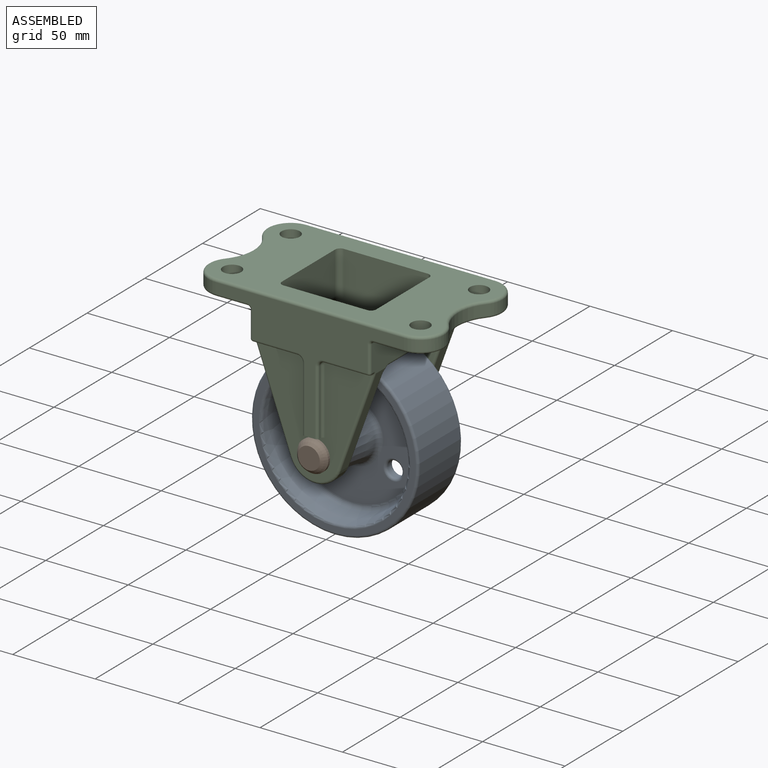
[diagram: assembled view]
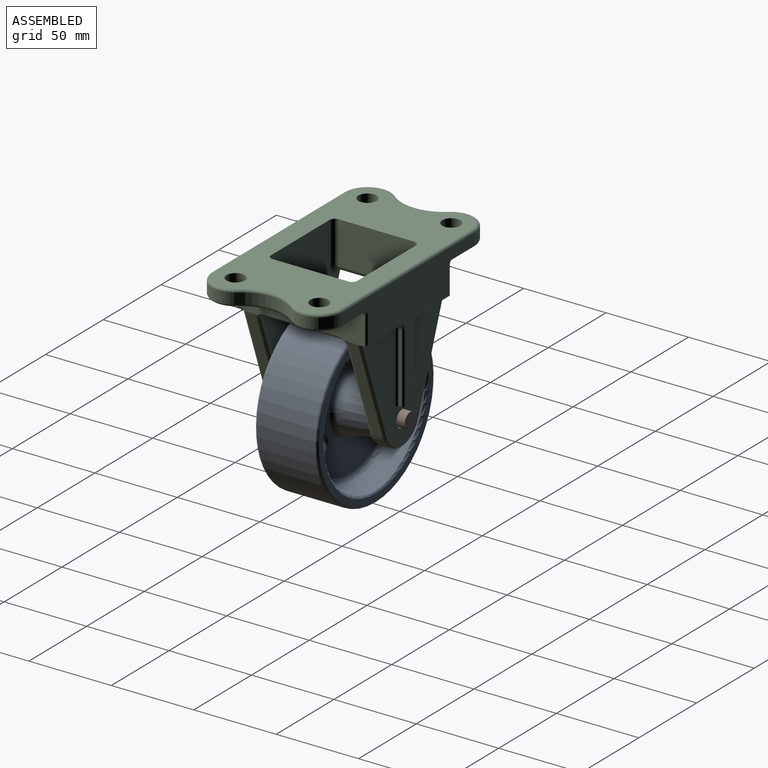
[diagram: assembled view, second angle]
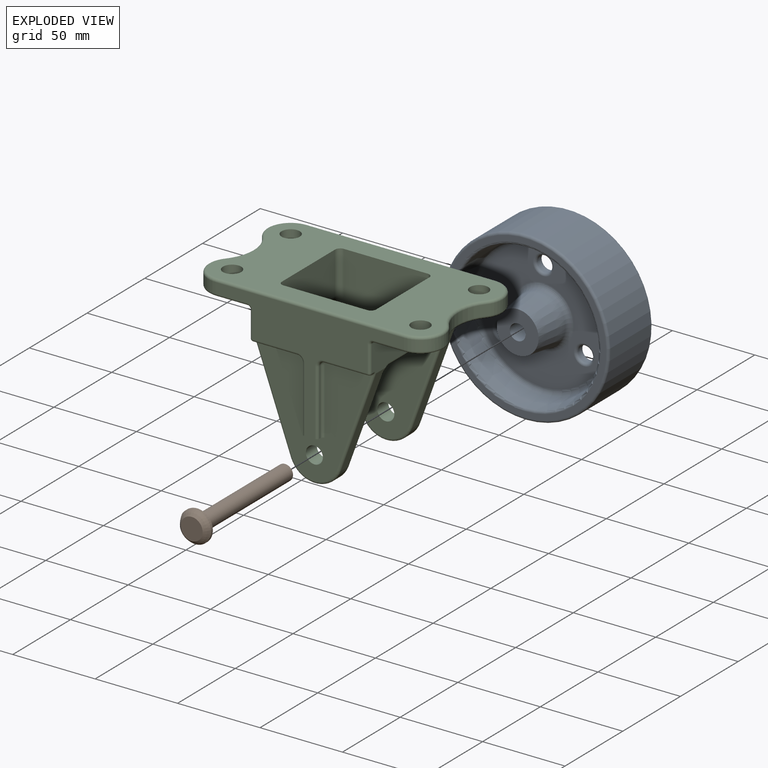
[diagram: exploded view]
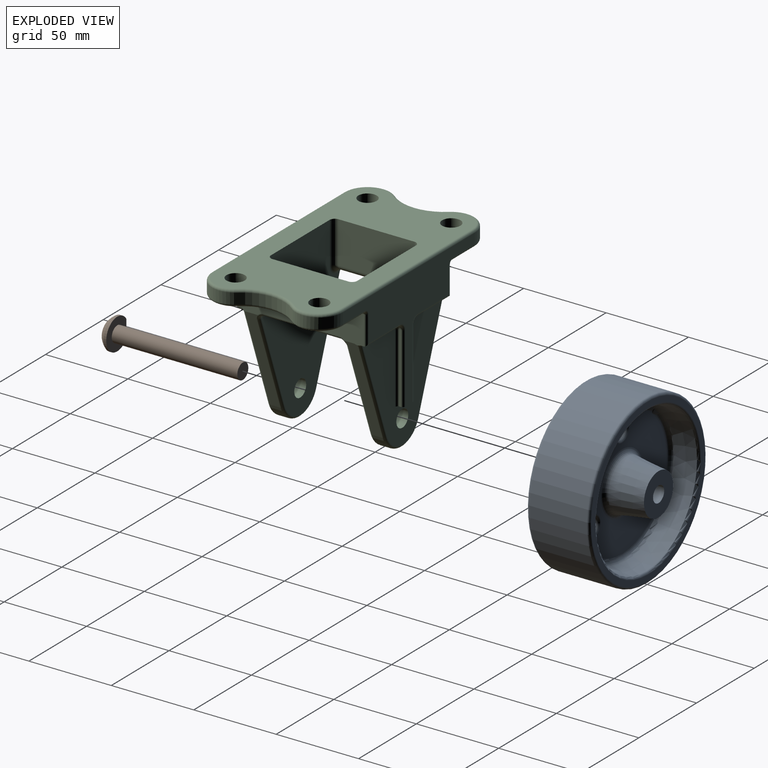
[diagram: exploded view, second angle]
ASSEMBLY  parts=3 mates=2
PART A: 29 faces, bbox 110x50.8x110 mm
  f0: cylinder r=50.8mm len=101.6mm, axis (0,1,0), area 11147.6mm2, adj f17,f18
  f1: plane 98.43x98.43mm, normal (0,-1,0), area 1032.6mm2, adj f18,f20
  f2: plane 98.43x98.43mm, normal (0,1,0), area 1032.6mm2, adj f17,f19
  f3: cylinder r=4.76mm len=9.53mm, axis (0,1,0), area 95mm2, adj f23,f26
  f4: cylinder r=4.76mm len=9.53mm, axis (0,1,0), area 95mm2, adj f22,f25
  f5: cylinder r=4.76mm len=9.53mm, axis (0,1,0), area 95mm2, adj f21,f24
  f6: plane 77.34x77.34mm, normal (0,-1,0), area 3228.1mm2, adj f15,f24,f25,f26,f27
  f7: plane 77.34x77.34mm, normal (0,1,0), area 3228.1mm2, adj f16,f21,f22,f23,f28
  f8: cylinder r=4.83mm len=50.8mm, axis (0,1,0), area 1540.4mm2, adj f9,f10
  f9: plane 25.4x25.4mm, normal (0,-1,0), area 433.5mm2, adj f8,f11
  f10: plane 25.4x25.4mm, normal (0,1,0), area 433.5mm2, adj f8,f12
  f11: cone r=12.7mm half-angle=8.1deg, axis (0,1,0), area 1744.1mm2, adj f9,f15
  f12: cone r=15.88mm half-angle=8.1deg, axis (0,-1,0), area 1744.1mm2, adj f10,f16
  f13: cone r=41.27mm half-angle=11.3deg, axis (0,-1,0), area 3318.4mm2, adj f20,f27
  f14: cone r=44.45mm half-angle=11.3deg, axis (0,1,0), area 3318.4mm2, adj f19,f28
  f15: torus R=18.63mm, axis (0,-1,0), area 476.6mm2, adj f6,f11
  f16: torus R=18.63mm, axis (0,-1,0), area 476.6mm2, adj f7,f12
  f17: torus R=49.21mm, axis (0,-1,0), area 786.9mm2, adj f0,f2
  f18: torus R=49.21mm, axis (0,-1,0), area 786.9mm2, adj f0,f1
  f19: torus R=45.75mm, axis (0,-1,0), area 614mm2, adj f2,f14
  f20: torus R=45.75mm, axis (0,-1,0), area 614mm2, adj f1,f13
  f21: torus R=6.35mm, axis (0,-1,0), area 83.7mm2, adj f5,f7
  f22: torus R=6.35mm, axis (0,-1,0), area 83.7mm2, adj f4,f7
  f23: torus R=6.35mm, axis (0,-1,0), area 83.7mm2, adj f3,f7
  f24: torus R=6.35mm, axis (0,-1,0), area 83.7mm2, adj f5,f6
  f25: torus R=6.35mm, axis (0,-1,0), area 83.7mm2, adj f4,f6
  f26: torus R=6.35mm, axis (0,-1,0), area 83.7mm2, adj f3,f6
  f27: torus R=38.67mm, axis (0,-1,0), area 1110.5mm2, adj f6,f13
  f28: torus R=38.67mm, axis (0,-1,0), area 1110.5mm2, adj f7,f14
PART B: 7 faces, bbox 81x19.1x19.1 mm
  f0: sphere r=11.11mm, area 202.5mm2, adj f1,f5,f6
  f1: cylinder r=9.53mm len=19.05mm, axis (-1,0,0), area 77.3mm2, adj f0,f2,f6
  f2: plane 19.05x17.46mm, normal (1,0,0), area 202.4mm2, adj f1,f3,f6
  f3: cylinder r=4.76mm len=76.2mm, axis (-1,0,0), area 2280.2mm2, adj f2,f4
  f4: plane 9.53x9.53mm, normal (1,0,0), area 71.3mm2, adj f3
  f5: plane 13.31x13.31mm, normal (-1,0,0), area 139.2mm2, adj f0
  f6: plane 10.53x3.64mm, normal (0,0,1), area 31.6mm2, adj f0,f1,f2
PART C: 149 faces, bbox 147.6x84.1x102.1 mm
  f0: cylinder r=1.59mm len=19.05mm, axis (1,0,0), area 47.5mm2, adj f2,f7,f56,f133
  f1: cylinder r=1.59mm len=114.3mm, axis (-1,0,0), area 285mm2, adj f3,f7,f138,f143
  f2: plane 76.2x31.75mm, normal (0,0,-1), area 1891.8mm2, adj f0,f57,f58,f125,f126,f133,f134,f135
  f3: plane 139.7x76.2mm, normal (0,0,1), area 6604.7mm2, adj f1,f5,f20,f23,f24,f25,f41,f42
  f4: cylinder r=1.59mm len=19.05mm, axis (-1,0,0), area 47.5mm2, adj f6,f8,f69,f148
  f5: cylinder r=1.59mm len=114.3mm, axis (1,0,0), area 285mm2, adj f3,f6,f140,f141
  f6: plane 114.3x72.23mm, normal (0,1,0), area 2367.9mm2, adj f4,f5,f29,f58,f59,f60,f61,f62
  f7: plane 114.3x69.85mm, normal (0,-1,0), area 2352.8mm2, adj f0,f1,f36,f55,f56,f64,f65,f66
  f8: plane 76.2x31.75mm, normal (0,0,-1), area 1891.8mm2, adj f4,f64,f67,f123,f124,f146,f147,f148
  f9: plane 68.49x66.68mm, normal (0,-1,0), area 2305.3mm2, adj f19,f36,f92,f93,f94,f105,f106,f107
  f10: plane 59.8x22mm, normal (-0.94,0,-0.34), area 402.6mm2, adj f12,f17,f78,f80,f82,f91,f122
  f11: plane 59.8x22mm, normal (0.94,0,-0.34), area 402.6mm2, adj f12,f18,f73,f74,f75,f89,f118
  f12: cylinder r=15.88mm len=29.84mm, axis (0,-1,0), area 246.4mm2, adj f10,f11,f76,f90
  f13: plane 59.48x21.67mm, normal (-0.94,0,-0.34), area 403.4mm2, adj f15,f17,f86,f87,f88,f94
  f14: plane 59.48x21.67mm, normal (0.94,0,-0.34), area 403.4mm2, adj f15,f18,f79,f81,f83,f92
  f15: cylinder r=15.88mm len=29.84mm, axis (0,-1,0), area 246.4mm2, adj f13,f14,f85,f93
  f16: cylinder r=5.16mm len=10.32mm, axis (0,-1,0), area 308.8mm2, adj f24,f31
  f17: plane 78.61x20.32mm, normal (-1,0,0), area 1246mm2, adj f10,f13,f26,f65,f67,f71,f82,f84
  f18: plane 78.61x20.32mm, normal (1,0,0), area 1246mm2, adj f11,f14,f27,f55,f57,f62,f75,f77
  f19: cylinder r=5.16mm len=10.32mm, axis (0,-1,0), area 308.8mm2, adj f9,f25
  f20: plane 46.04x25.4mm, normal (1,0,0), area 1169.4mm2, adj f3,f42,f44,f48
  f21: plane 46.04x3.18mm, normal (0,0,-1), area 146.2mm2, adj f45,f47,f48,f84
  f22: plane 46.04x3.18mm, normal (0,0,-1), area 146.2mm2, adj f50,f52,f53,f77
  f23: plane 46.04x25.4mm, normal (-1,0,0), area 1169.4mm2, adj f3,f41,f43,f52
  f24: plane 96.84x67.34mm, normal (0,-1,0), area 4352.9mm2, adj f3,f16,f43,f44,f47,f49,f53,f54
  f25: plane 96.84x67.34mm, normal (0,1,0), area 4352.9mm2, adj f3,f19,f41,f42,f45,f46,f50,f51
  f26: plane 28.58x1.62mm, normal (0,0,-1), area 23.3mm2, adj f17,f39,f72,f121,f122
  f27: plane 28.58x1.62mm, normal (0,0,-1), area 23.3mm2, adj f18,f40,f63,f117,f118
  f28: plane 42.07x0.8mm, normal (1,0,0), area 33.4mm2, adj f29,f40,f59,f115
  f29: plane 12.7x3.97mm, normal (0,0,-1), area 37.8mm2, adj f6,f28,f30,f31,f59,f68,f115,f119
  f30: plane 42.07x0.8mm, normal (-1,0,0), area 33.4mm2, adj f29,f39,f68,f119
  f31: plane 68.49x66.68mm, normal (0,1,0), area 2275mm2, adj f16,f29,f89,f90,f91,f115,f116,f117
  f32: plane 39.69x0.8mm, normal (1,0,0), area 31.6mm2, adj f36,f37,f104,f110
  f33: plane 26.99x0.86mm, normal (0,0,-1), area 21.5mm2, adj f37,f100,f102,f112,f113
  f34: plane 26.99x0.86mm, normal (0,0,-1), area 21.5mm2, adj f38,f95,f97,f107,f108
  f35: plane 39.69x0.8mm, normal (-1,0,0), area 31.6mm2, adj f36,f38,f99,f105
  f36: plane 12.7x3.97mm, normal (0,0,-1), area 37.8mm2, adj f7,f9,f32,f35,f99,f104,f105,f110
  f37: cylinder r=3.17mm len=3.18mm, axis (0,-1,0), area 4mm2, adj f32,f33,f103,f111
  f38: cylinder r=3.17mm len=3.18mm, axis (0,-1,0), area 4mm2, adj f34,f35,f98,f106
  f39: cylinder r=3.17mm len=3.18mm, axis (0,1,0), area 4mm2, adj f26,f30,f70,f120
  f40: cylinder r=3.17mm len=3.18mm, axis (0,1,0), area 4mm2, adj f27,f28,f61,f116
  f41: cylinder r=3.17mm len=25.4mm, axis (0,0,-1), area 126.7mm2, adj f3,f23,f25,f51
  f42: cylinder r=3.17mm len=25.4mm, axis (0,0,1), area 126.7mm2, adj f3,f20,f25,f46
  f43: cylinder r=3.17mm len=25.4mm, axis (0,0,1), area 126.7mm2, adj f3,f23,f24,f54
  f44: cylinder r=3.17mm len=25.4mm, axis (0,0,-1), area 126.7mm2, adj f3,f20,f24,f49
  f45: cylinder r=3.17mm len=3.18mm, axis (1,0,0), area 14.2mm2, adj f21,f25,f46,f86,f88
  f46: torus R=6.35mm, axis (0,-1,0), area 33.9mm2, adj f25,f42,f45,f48
  f47: cylinder r=3.17mm len=3.18mm, axis (-1,0,0), area 14.2mm2, adj f21,f24,f49,f80,f82
  f48: cylinder r=3.17mm len=46.04mm, axis (0,1,0), area 229.6mm2, adj f20,f21,f46,f49
  f49: torus R=6.35mm, axis (0,-1,0), area 33.9mm2, adj f24,f44,f47,f48
  f50: cylinder r=3.17mm len=3.18mm, axis (1,0,0), area 14.2mm2, adj f22,f25,f51,f79,f81
  f51: torus R=6.35mm, axis (0,-1,0), area 33.9mm2, adj f25,f41,f50,f52
  f52: cylinder r=3.17mm len=46.04mm, axis (0,1,0), area 229.6mm2, adj f22,f23,f51,f54
  f53: cylinder r=3.17mm len=3.18mm, axis (-1,0,0), area 14.2mm2, adj f22,f24,f54,f73,f75
  f54: torus R=6.35mm, axis (0,-1,0), area 33.9mm2, adj f24,f43,f52,f53
  f55: cylinder r=1.59mm len=15.88mm, axis (0,0,1), area 39.6mm2, adj f7,f18,f56,f101
  f56: torus R=3.17mm, axis (0,-1,0), area 8.5mm2, adj f0,f7,f55,f57
  f57: cylinder r=1.59mm len=76.2mm, axis (0,1,0), area 190mm2, adj f2,f18,f56,f60
  f58: cylinder r=1.59mm len=19.05mm, axis (-1,0,0), area 47.5mm2, adj f2,f6,f60,f135
  f59: cylinder r=1.59mm len=42.07mm, axis (0,0,-1), area 104.9mm2, adj f6,f28,f29,f61
  f60: torus R=3.17mm, axis (0,-1,0), area 8.5mm2, adj f6,f57,f58,f62
  f61: torus R=4.76mm, axis (0,-1,0), area 14.7mm2, adj f6,f40,f59,f63
  f62: cylinder r=1.59mm len=17.46mm, axis (0,0,-1), area 41.6mm2, adj f6,f18,f60,f63
  f63: cylinder r=1.59mm len=28.58mm, axis (-1,0,0), area 69.3mm2, adj f6,f27,f61,f62
  f64: cylinder r=1.59mm len=19.05mm, axis (1,0,0), area 47.5mm2, adj f7,f8,f66,f146
  f65: cylinder r=1.59mm len=15.88mm, axis (0,0,-1), area 39.6mm2, adj f7,f17,f66,f96
  f66: torus R=3.17mm, axis (0,-1,0), area 8.5mm2, adj f7,f64,f65,f67
  f67: cylinder r=1.59mm len=76.2mm, axis (0,1,0), area 190mm2, adj f8,f17,f66,f69
  f68: cylinder r=1.59mm len=42.07mm, axis (0,0,1), area 104.9mm2, adj f6,f29,f30,f70
  f69: torus R=3.17mm, axis (0,-1,0), area 8.5mm2, adj f4,f6,f67,f71
  f70: torus R=4.76mm, axis (0,-1,0), area 14.7mm2, adj f6,f39,f68,f72
  f71: cylinder r=1.59mm len=17.46mm, axis (0,0,1), area 41.6mm2, adj f6,f17,f69,f72
  f72: cylinder r=1.59mm len=28.58mm, axis (-1,0,0), area 69.3mm2, adj f6,f26,f70,f71
  f73: bspline ~3.58x2.79mm, area 7.8mm2, adj f11,f53,f74,f75
  f74: cylinder r=1.59mm len=56.22mm, axis (0.34,0,0.94), area 147.7mm2, adj f11,f24,f73,f76
  f75: torus R=4.76mm, axis (1,0,0), area 7.4mm2, adj f11,f18,f53,f73,f77
  f76: torus R=14.29mm, axis (0,-1,0), area 93.2mm2, adj f12,f24,f74,f78
  f77: cylinder r=1.59mm len=46.04mm, axis (0,-1,0), area 114.8mm2, adj f18,f22,f75,f79
  f78: cylinder r=1.59mm len=56.22mm, axis (0.34,0,-0.94), area 147.7mm2, adj f10,f24,f76,f80
  f79: torus R=4.76mm, axis (1,0,0), area 7.4mm2, adj f14,f18,f50,f77,f81
  f80: bspline ~4.73x3.21mm, area 7.8mm2, adj f10,f47,f78,f82
  f81: bspline ~4.73x3.21mm, area 7.8mm2, adj f14,f50,f79,f83
  f82: torus R=4.76mm, axis (1,0,0), area 7.4mm2, adj f10,f17,f47,f80,f84
  f83: cylinder r=1.59mm len=56.22mm, axis (-0.34,0,-0.94), area 147.7mm2, adj f14,f25,f81,f85
  f84: cylinder r=1.59mm len=46.04mm, axis (0,-1,0), area 114.8mm2, adj f17,f21,f82,f86
  f85: torus R=14.29mm, axis (0,-1,0), area 93.2mm2, adj f15,f25,f83,f87
  f86: torus R=4.76mm, axis (1,0,0), area 7.4mm2, adj f13,f17,f45,f84,f88
  f87: cylinder r=1.59mm len=56.22mm, axis (-0.34,0,0.94), area 147.7mm2, adj f13,f25,f85,f88
  f88: bspline ~3.58x2.79mm, area 7.8mm2, adj f13,f45,f86,f87
  f89: cylinder r=1.59mm len=58.9mm, axis (-0.34,0,-0.94), area 153.4mm2, adj f11,f31,f90,f118
  f90: torus R=14.29mm, axis (0,-1,0), area 93.2mm2, adj f12,f31,f89,f91
  f91: cylinder r=1.59mm len=58.9mm, axis (-0.34,0,0.94), area 153.4mm2, adj f10,f31,f90,f122
  f92: cylinder r=1.59mm len=60.54mm, axis (0.34,0,0.94), area 155.7mm2, adj f9,f14,f18,f93,f113,f114
  f93: torus R=14.29mm, axis (0,-1,0), area 93.2mm2, adj f9,f15,f92,f94
  f94: cylinder r=1.59mm len=60.54mm, axis (0.34,0,-0.94), area 155.7mm2, adj f9,f13,f17,f93,f108,f109
  f95: cylinder r=1.59mm len=2.35mm, axis (0,-1,0), area 4.4mm2, adj f17,f34,f96,f109
  f96: sphere r=1.59mm, area 4mm2, adj f65,f95,f97
  f97: cylinder r=1.59mm len=26.99mm, axis (-1,0,0), area 67.3mm2, adj f7,f34,f96,f98
  f98: torus R=4.76mm, axis (0,-1,0), area 14.7mm2, adj f7,f38,f97,f99
  f99: cylinder r=1.59mm len=39.69mm, axis (0,0,1), area 99mm2, adj f7,f35,f36,f98
  f100: cylinder r=1.59mm len=2.35mm, axis (0,-1,0), area 4.4mm2, adj f18,f33,f101,f114
  f101: sphere r=1.59mm, area 4mm2, adj f55,f100,f102
  f102: cylinder r=1.59mm len=26.99mm, axis (-1,0,0), area 67.3mm2, adj f7,f33,f101,f103
  f103: torus R=4.76mm, axis (0,-1,0), area 14.7mm2, adj f7,f37,f102,f104
  f104: cylinder r=1.59mm len=39.69mm, axis (0,0,-1), area 99mm2, adj f7,f32,f36,f103
  f105: cylinder r=1.59mm len=39.69mm, axis (0,0,-1), area 99mm2, adj f9,f35,f36,f106
  f106: torus R=1.59mm, axis (0,-1,0), area 10.2mm2, adj f9,f38,f105,f107
  f107: cylinder r=1.59mm len=26.31mm, axis (1,0,0), area 65.6mm2, adj f9,f34,f106,f108
  f108: bspline ~1.62x1.59mm, area 1.2mm2, adj f34,f94,f107,f109
  f109: bspline ~3.73x2.5mm, area 4.2mm2, adj f17,f94,f95,f108
  f110: cylinder r=1.59mm len=39.69mm, axis (0,0,1), area 99mm2, adj f9,f32,f36,f111
  f111: torus R=1.59mm, axis (0,-1,0), area 10.2mm2, adj f9,f37,f110,f112
  f112: cylinder r=1.59mm len=26.31mm, axis (1,0,0), area 65.6mm2, adj f9,f33,f111,f113
  f113: bspline ~1.62x1.59mm, area 1.2mm2, adj f33,f92,f112,f114
  f114: bspline ~3.73x2.5mm, area 4.2mm2, adj f18,f92,f100,f113
  f115: cylinder r=1.59mm len=42.07mm, axis (0,0,1), area 104.9mm2, adj f28,f29,f31,f116
  f116: torus R=1.59mm, axis (0,-1,0), area 10.2mm2, adj f31,f40,f115,f117
  f117: cylinder r=1.59mm len=26.31mm, axis (1,0,0), area 65.6mm2, adj f27,f31,f116,f118
  f118: bspline ~5.53x3.38mm, area 10.1mm2, adj f11,f18,f27,f89,f117
  f119: cylinder r=1.59mm len=42.07mm, axis (0,0,-1), area 104.9mm2, adj f29,f30,f31,f120
  f120: torus R=1.59mm, axis (0,-1,0), area 10.2mm2, adj f31,f39,f119,f121
  f121: cylinder r=1.59mm len=26.31mm, axis (1,0,0), area 65.6mm2, adj f26,f31,f120,f122
  f122: bspline ~5.53x3.38mm, area 10.1mm2, adj f10,f17,f26,f91,f121
  f123: cylinder r=5.56mm len=11.11mm, axis (0,0,1), area 332.5mm2, adj f3,f8
  f124: cylinder r=5.56mm len=11.11mm, axis (0,0,1), area 332.5mm2, adj f3,f8
  f125: cylinder r=5.56mm len=11.11mm, axis (0,0,1), area 332.5mm2, adj f2,f3
  f126: cylinder r=5.56mm len=11.11mm, axis (0,0,1), area 332.5mm2, adj f2,f3
  f127: cylinder r=25.4mm len=32.51mm, axis (0,0,-1), area 224mm2, adj f128,f129,f144,f147
  f128: cylinder r=14.29mm len=23.43mm, axis (0,0,-1), area 205.5mm2, adj f6,f127,f141,f142,f148
  f129: cylinder r=14.29mm len=23.43mm, axis (0,0,-1), area 205.5mm2, adj f7,f127,f143,f145,f146
  f130: cylinder r=25.4mm len=32.51mm, axis (0,0,-1), area 224mm2, adj f131,f132,f136,f139
  f131: cylinder r=14.29mm len=23.43mm, axis (0,0,-1), area 205.5mm2, adj f6,f130,f135,f137,f140
  f132: cylinder r=14.29mm len=23.43mm, axis (0,0,-1), area 205.5mm2, adj f7,f130,f133,f134,f138
  f133: torus R=12.7mm, axis (0,0,-1), area 53.7mm2, adj f0,f2,f132,f134
  f134: torus R=12.7mm, axis (0,0,-1), area 23.7mm2, adj f2,f132,f133,f136
  f135: torus R=12.7mm, axis (0,0,-1), area 53.7mm2, adj f2,f58,f131,f137
  f136: torus R=26.99mm, axis (0,0,-1), area 90mm2, adj f2,f130,f134,f137
  f137: torus R=12.7mm, axis (0,0,-1), area 23.7mm2, adj f2,f131,f135,f136
  f138: torus R=12.7mm, axis (0,0,-1), area 77.4mm2, adj f1,f3,f132,f139
  f139: torus R=26.99mm, axis (0,0,-1), area 90mm2, adj f3,f130,f138,f140
  f140: torus R=12.7mm, axis (0,0,-1), area 77.4mm2, adj f3,f5,f131,f139
  f141: torus R=12.7mm, axis (0,0,-1), area 53.7mm2, adj f3,f5,f128,f142
  f142: torus R=12.7mm, axis (0,0,-1), area 23.7mm2, adj f3,f128,f141,f144
  f143: torus R=12.7mm, axis (0,0,-1), area 53.7mm2, adj f1,f3,f129,f145
  f144: torus R=26.99mm, axis (0,0,-1), area 90mm2, adj f3,f127,f142,f145
  f145: torus R=12.7mm, axis (0,0,-1), area 23.7mm2, adj f3,f129,f143,f144
  f146: torus R=12.7mm, axis (0,0,1), area 77.4mm2, adj f8,f64,f129,f147
  f147: torus R=26.99mm, axis (0,0,1), area 90mm2, adj f8,f127,f146,f148
  f148: torus R=12.7mm, axis (0,0,1), area 77.4mm2, adj f4,f8,f128,f147
PLACE A t=(50.21,19.82,-19.83)mm
PLACE B rot(axis=(-0.58,-0.58,0.58),120deg) t=(4.63,-16.7,-8.82)mm
PLACE C t=(4.63,-16.7,21.8)mm
MATE revolute A.f0 <-> C.f12  axis (0,1,0) through (4.63,45.22,-8.82)mm
MATE fastened B.f1 <-> C.f12  axis (0,-1,0) through (4.63,-16.7,-8.82)mm
